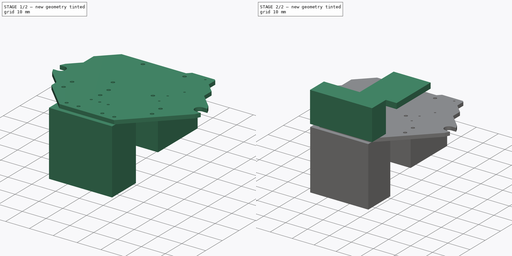
[diagram: build sequence overview — one tinted view per stage of 2, left to right]
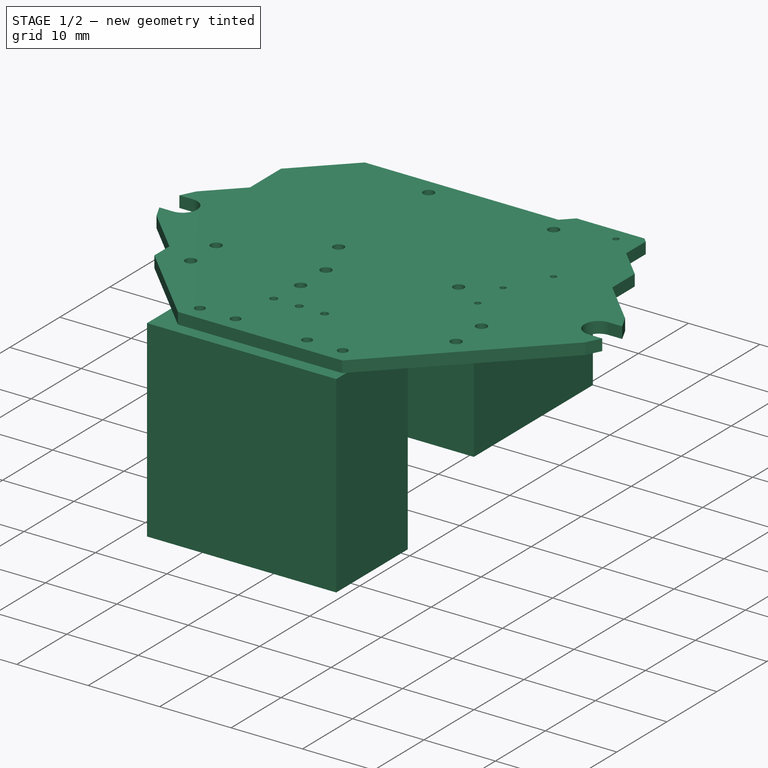
[diagram: stage 1 of 2 — iso view after this stage's code; geometry added in this stage tinted green]
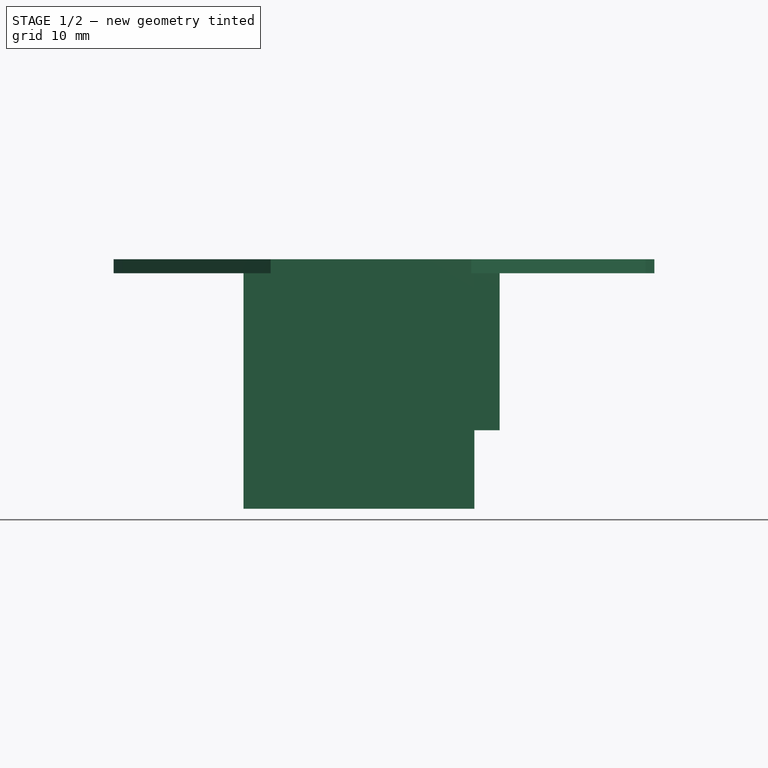
[diagram: stage 1 of 2 — front view after this stage's code; geometry added in this stage tinted green]
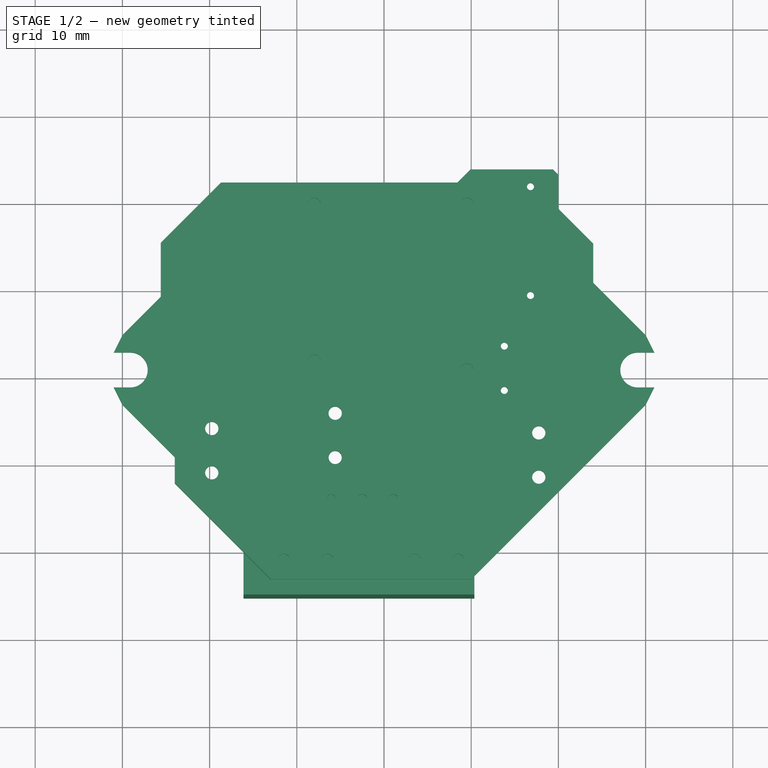
[diagram: stage 1 of 2 — top view after this stage's code; geometry added in this stage tinted green]
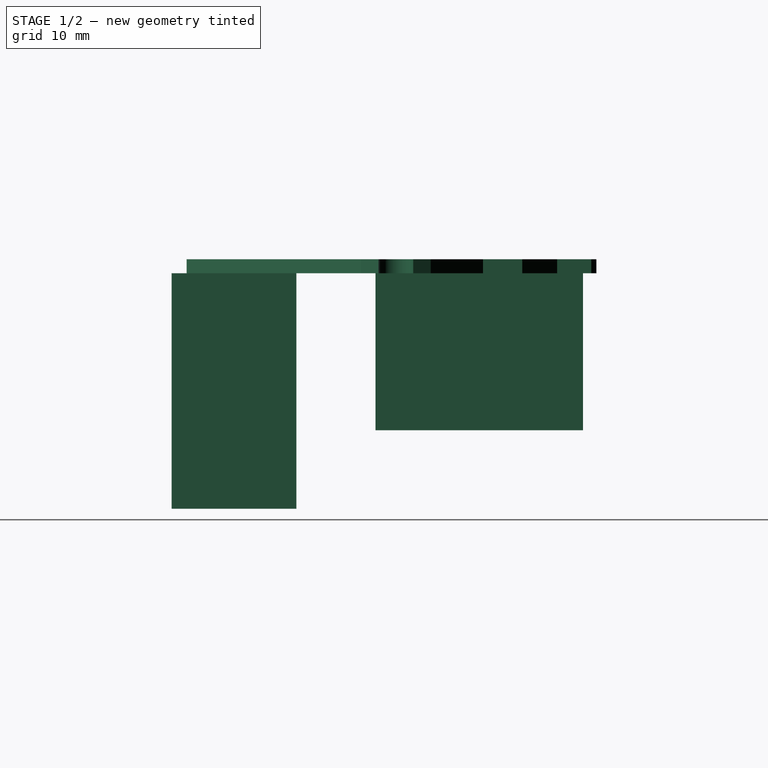
[diagram: stage 1 of 2 — right view after this stage's code; geometry added in this stage tinted green]
FCSTD DOCUMENT  (FreeCAD 0.16R)
Label: esp8266_test_board
License: All rights reserved
LicenseURL: http://en.wikipedia.org/wiki/All_rights_reserved
objects: Sketcher::SketchObject×4, PartDesign::Pad×4, App::DocumentObjectGroup×2, Part::Feature×1
note: 13 computed .brp shape members not serialized (recipe doc carries the construction recipe); baked Part::Feature solids carry a one-line shape summary decoded from their .brp

FEATURE [Part::Feature] Pcb
  Placement = pos=(-71,65.5,0) rot=(0,0,1;0rad)
  shape: bbox 62.01 x 47.01 x 1.61 mm, 52 faces (baked)
FEATURE [App::DocumentObjectGroup] Step_Models
FEATURE [Sketcher::SketchObject] Sketch
  Placement = pos=(-71,65.5,-1.6) rot=(1,0,0;3.14159rad)
  Support = -> Pcb [Face52]
  sketch-geometry (4):
    g0: LineSegment StartX=84.2668 StartY=43.5377 StartZ=0 EndX=60.2693 EndY=43.5377 EndZ=0
    g1: LineSegment StartX=60.2693 StartY=43.5377 StartZ=0 EndX=60.2693 EndY=67.3389 EndZ=0
    g2: LineSegment StartX=60.2693 StartY=67.3389 StartZ=0 EndX=84.2668 EndY=67.3389 EndZ=0
    g3: LineSegment StartX=84.2668 StartY=67.3389 StartZ=0 EndX=84.2668 EndY=43.5377 EndZ=0
  constraints (8):
    c: Coincident(g0,g1)
    c: Coincident(g1,g2)
    c: Coincident(g2,g3)
    c: Coincident(g3,g0)
    c: Horizontal(g0)
    c: Horizontal(g2)
    c: Vertical(g1)
    c: Vertical(g3)
FEATURE [PartDesign::Pad] Pad
  Length = 18
  Length2 = 100
  Placement = pos=(-71,65.5,0) rot=(0,0,1;0rad)
  Sketch = -> Sketch
  Type = 0
FEATURE [Sketcher::SketchObject] Sketch001
  Placement = pos=(-71,65.5,-1.6) rot=(1,0,0;3.14159rad)
  Support = -> Pad [Face6]
  sketch-geometry (4):
    g0: LineSegment StartX=54.8842 StartY=90.7203 StartZ=0 EndX=81.3712 EndY=90.7203 EndZ=0
    g1: LineSegment StartX=81.3712 StartY=90.7203 StartZ=0 EndX=81.3712 EndY=76.4122 EndZ=0
    g2: LineSegment StartX=81.3712 StartY=76.4122 StartZ=0 EndX=54.8842 EndY=76.4122 EndZ=0
    g3: LineSegment StartX=54.8842 StartY=76.4122 StartZ=0 EndX=54.8842 EndY=90.7203 EndZ=0
  constraints (8):
    c: Coincident(g0,g1)
    c: Coincident(g1,g2)
    c: Coincident(g2,g3)
    c: Coincident(g3,g0)
    c: Horizontal(g0)
    c: Horizontal(g2)
    c: Vertical(g1)
    c: Vertical(g3)
FEATURE [PartDesign::Pad] Pad001
  Length = 27
  Length2 = 100
  Placement = pos=(-71,65.5,0) rot=(0,0,1;0rad)
  Sketch = -> Sketch001
  Type = 0
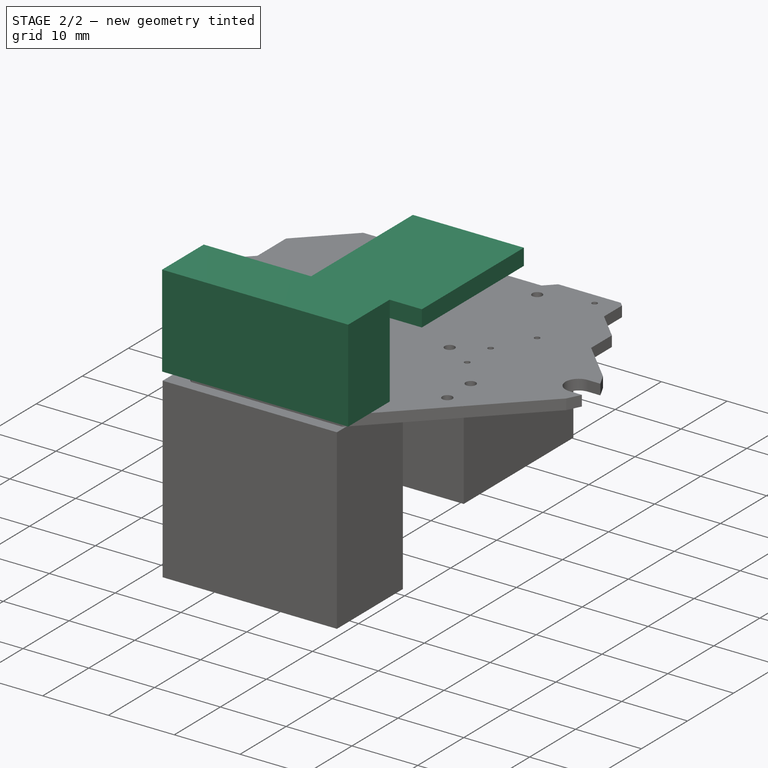
[diagram: stage 2 of 2 — iso view after this stage's code; geometry added in this stage tinted green]
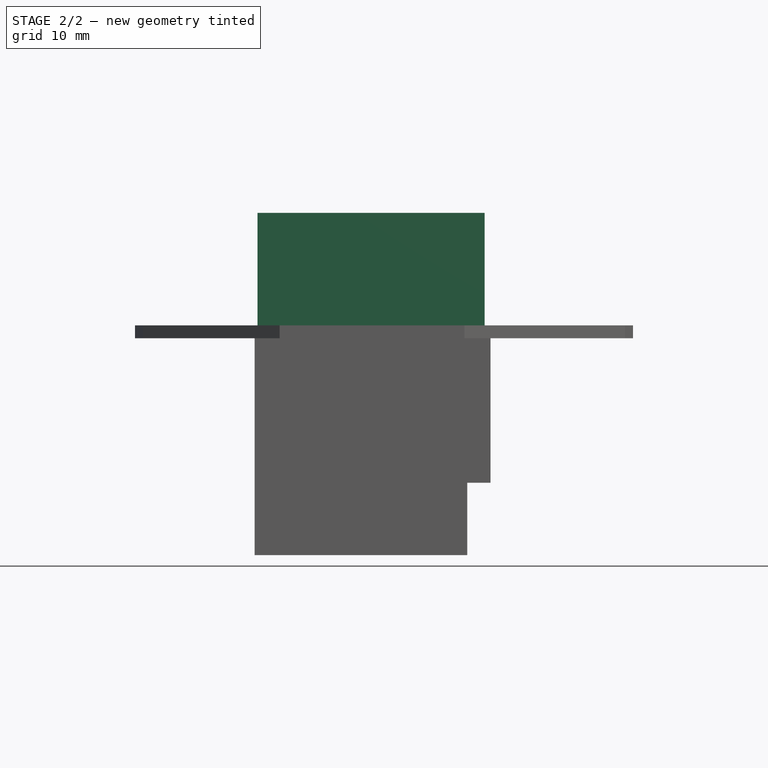
[diagram: stage 2 of 2 — front view after this stage's code; geometry added in this stage tinted green]
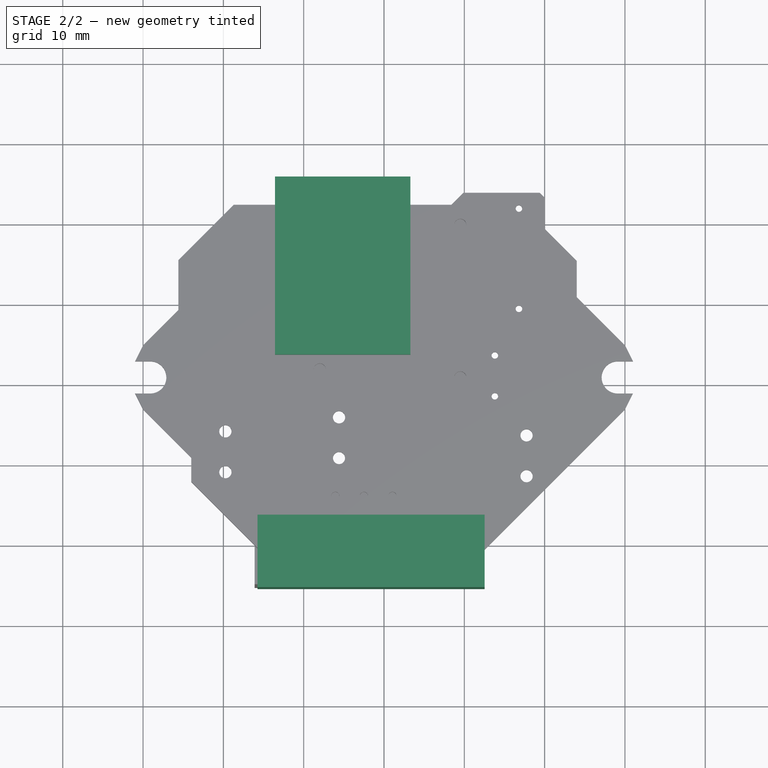
[diagram: stage 2 of 2 — top view after this stage's code; geometry added in this stage tinted green]
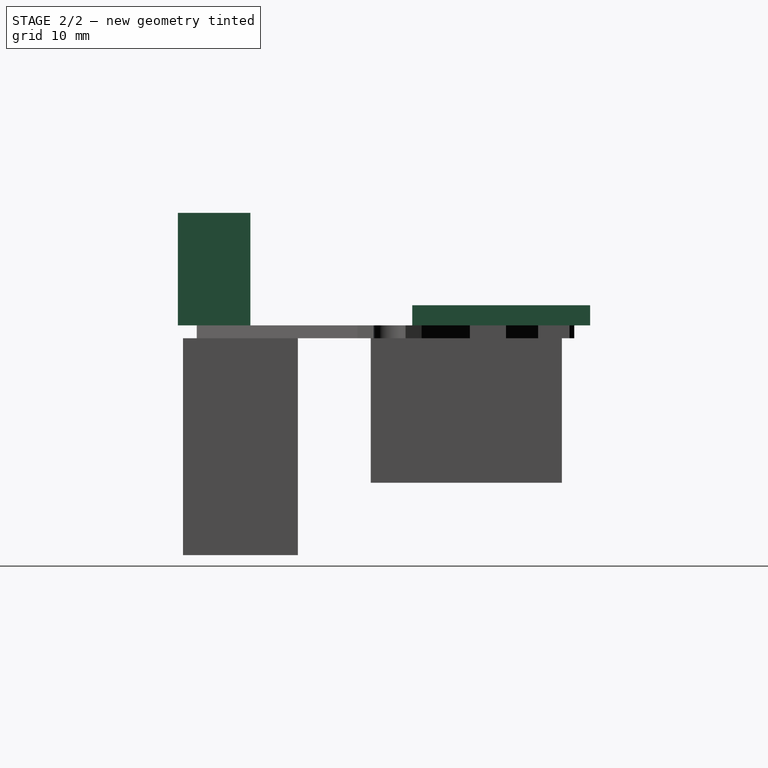
[diagram: stage 2 of 2 — right view after this stage's code; geometry added in this stage tinted green]
FEATURE [Sketcher::SketchObject] Sketch002
  Placement = pos=(-71,65.5,0) rot=(0,0,1;0rad)
  Support = -> Pad001 [Face48]
  sketch-geometry (4):
    g0: LineSegment StartX=55.2488 StartY=-82.3271 StartZ=0 EndX=83.5243 EndY=-82.3271 EndZ=0
    g1: LineSegment StartX=83.5243 StartY=-82.3271 StartZ=0 EndX=83.5243 EndY=-91.3548 EndZ=0
    g2: LineSegment StartX=83.5243 StartY=-91.3548 StartZ=0 EndX=55.2488 EndY=-91.3548 EndZ=0
    g3: LineSegment StartX=55.2488 StartY=-91.3548 StartZ=0 EndX=55.2488 EndY=-82.3271 EndZ=0
  constraints (8):
    c: Coincident(g0,g1)
    c: Coincident(g1,g2)
    c: Coincident(g2,g3)
    c: Coincident(g3,g0)
    c: Horizontal(g0)
    c: Horizontal(g2)
    c: Vertical(g1)
    c: Vertical(g3)
FEATURE [PartDesign::Pad] Pad002
  Length = 14
  Length2 = 100
  Placement = pos=(-71,65.5,0) rot=(0,0,1;0rad)
  Sketch = -> Sketch002
  Type = 0
FEATURE [Sketcher::SketchObject] Sketch003
  Placement = pos=(-71,65.5,0) rot=(0,0,1;0rad)
  Support = -> Pad002 [Face48]
  sketch-geometry (4):
    g0: LineSegment StartX=57.4232 StartY=-40.0257 StartZ=0 EndX=74.2862 EndY=-40.0257 EndZ=0
    g1: LineSegment StartX=74.2862 StartY=-40.0257 StartZ=0 EndX=74.2862 EndY=-62.1692 EndZ=0
    g2: LineSegment StartX=74.2862 StartY=-62.1692 StartZ=0 EndX=57.4232 EndY=-62.1692 EndZ=0
    g3: LineSegment StartX=57.4232 StartY=-62.1692 StartZ=0 EndX=57.4232 EndY=-40.0257 EndZ=0
  constraints (8):
    c: Coincident(g0,g1)
    c: Coincident(g1,g2)
    c: Coincident(g2,g3)
    c: Coincident(g3,g0)
    c: Horizontal(g0)
    c: Horizontal(g2)
    c: Vertical(g1)
    c: Vertical(g3)
FEATURE [PartDesign::Pad] Pad003
  Length = 2.5
  Length2 = 100
  Placement = pos=(-71,65.5,0) rot=(0,0,1;0rad)
  Sketch = -> Sketch003
  Type = 0
FEATURE [App::DocumentObjectGroup] Board_Geoms
  Group = -> [Pcb,Pad,Pad001,Pad002,Pad003]
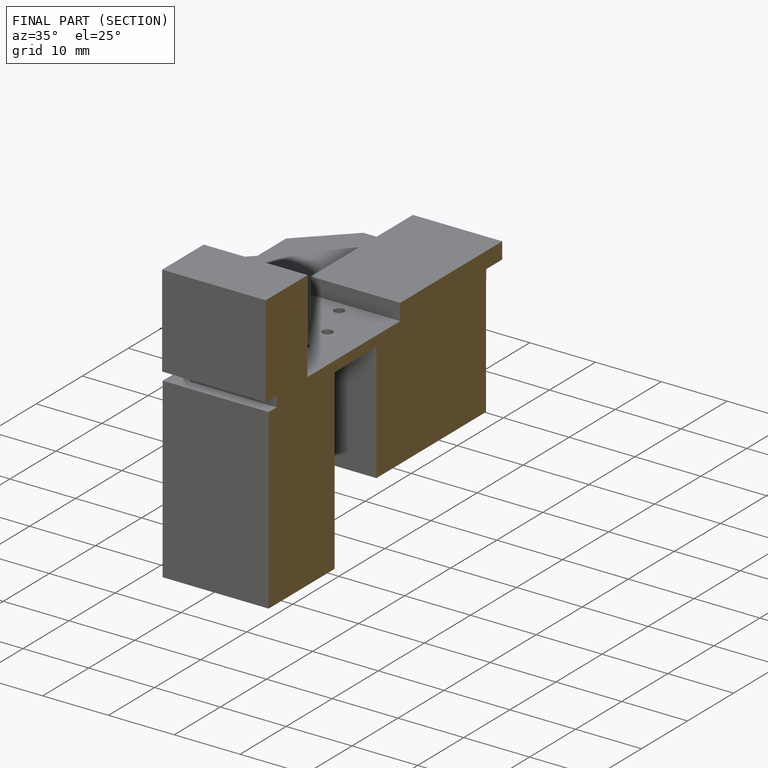
[diagram: finished part — half-section view (interior)]
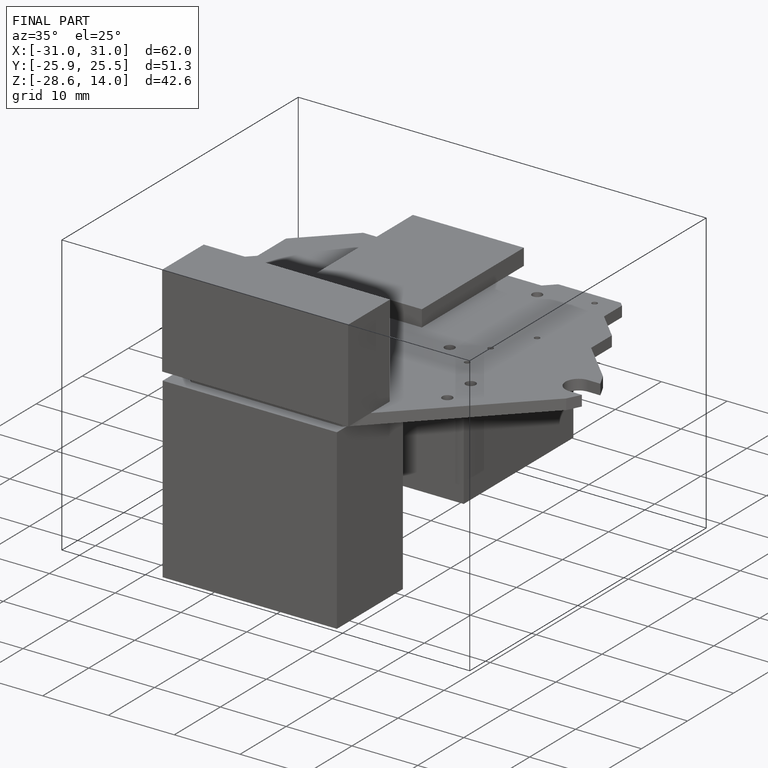
[diagram: finished part — iso view with bounding-box wireframe]
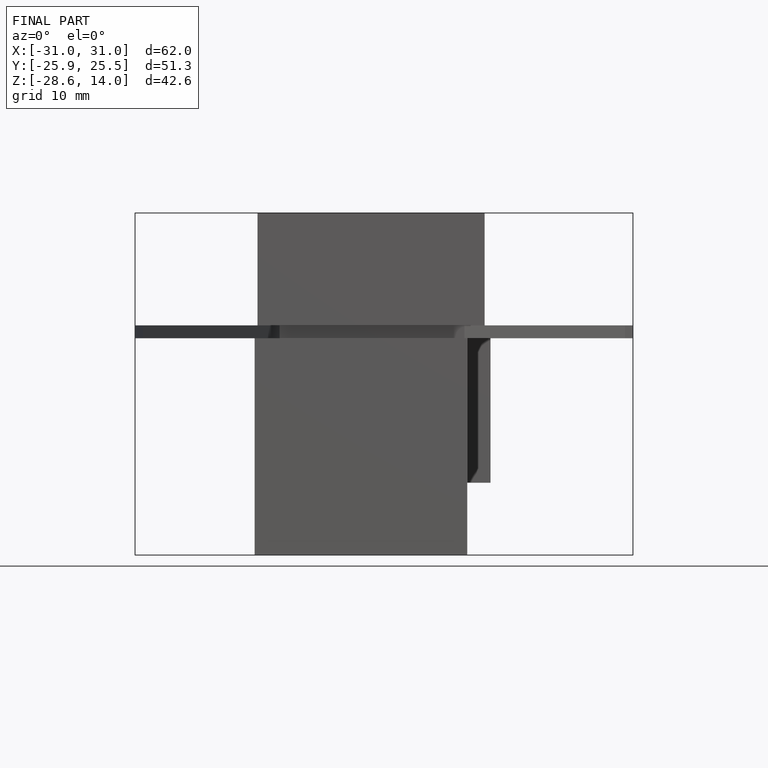
[diagram: finished part — front view with bounding-box wireframe]
